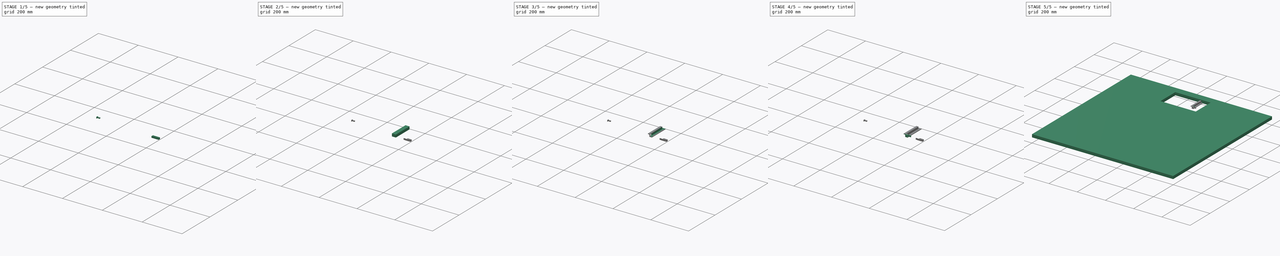
[diagram: build sequence overview — one tinted view per stage of 5, left to right]
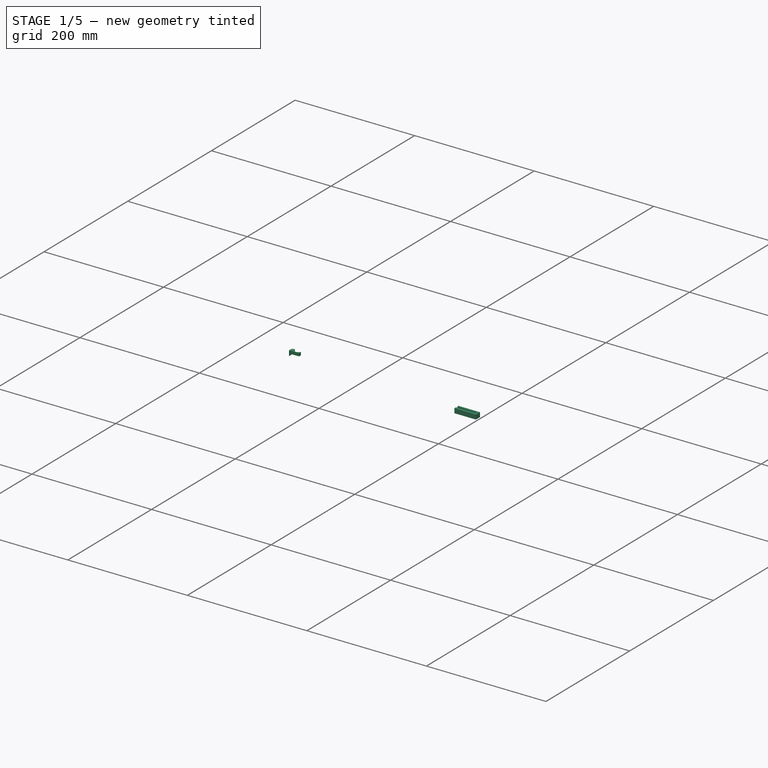
[diagram: stage 1 of 5 — iso view after this stage's code; geometry added in this stage tinted green]
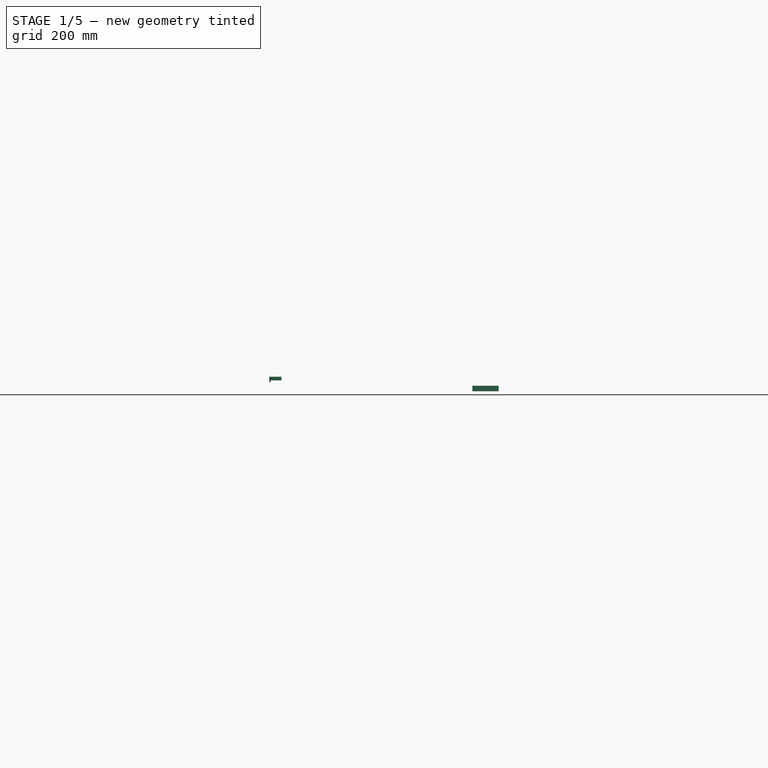
[diagram: stage 1 of 5 — front view after this stage's code; geometry added in this stage tinted green]
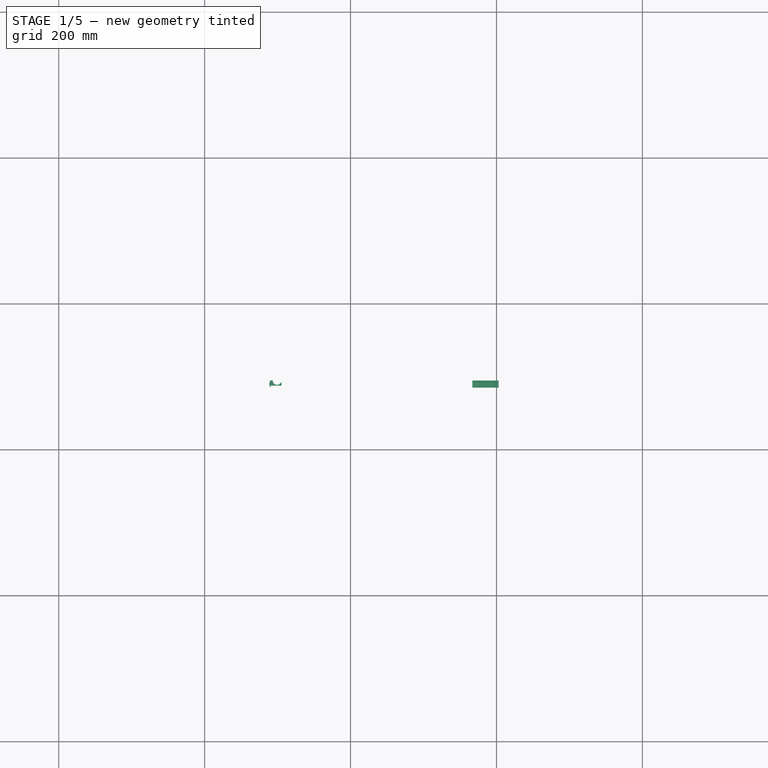
[diagram: stage 1 of 5 — top view after this stage's code; geometry added in this stage tinted green]
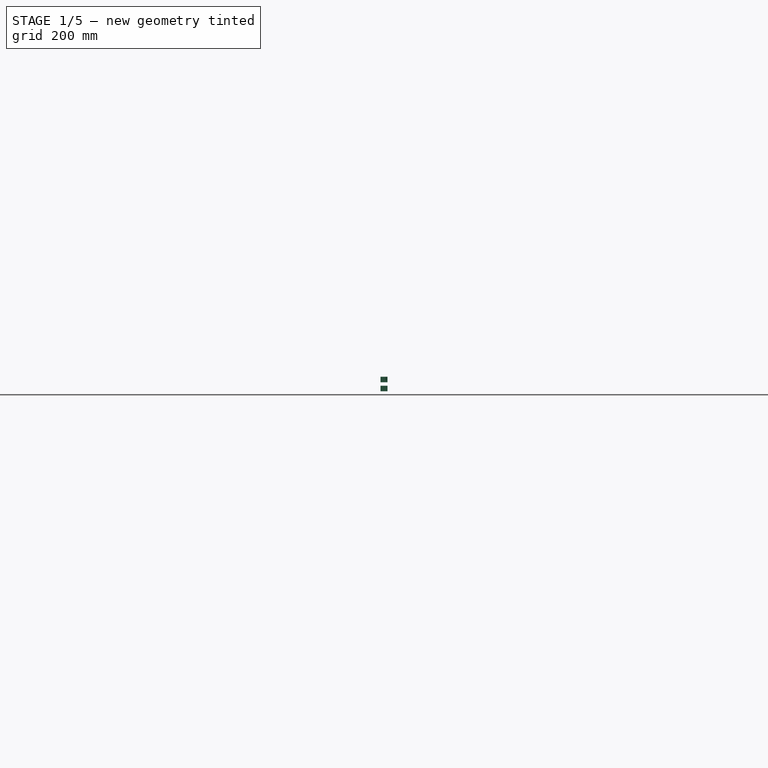
[diagram: stage 1 of 5 — right view after this stage's code; geometry added in this stage tinted green]
FCSTD DOCUMENT  (FreeCAD 0.20R29410 (Git))
Label: grinder_catchment_rails
License: All rights reserved
LicenseURL: http://en.wikipedia.org/wiki/All_rights_reserved
objects: Sketcher::SketchObject×17, PartDesign::Pad×11, PartDesign::Pocket×6, PartDesign::Body×4, Spreadsheet::Sheet×1, PartDesign::Fillet×1
note: 57 computed .brp shape members not serialized (recipe doc carries the construction recipe); baked Part::Feature solids carry a one-line shape summary decoded from their .brp

FEATURE [Sketcher::SketchObject] Sketch009
  FullyConstrained = false
  MapMode = 5
  Placement = pos=(0,0,0) rot=(0.57735,0.57735,0.57735;2.0944rad)
  Support = -> [YZ_Plane002]
  expr: Constraints[8] = Spreadsheet.lock_width - Spreadsheet.air_gap * 2
  expr: Constraints[9] = Spreadsheet.rail_lip_height - Spreadsheet.rail_thickness - Spreadsheet.air_gap * 2
  sketch-geometry (4):
    g0: LineSegment StartX=85.3205 StartY=-7.32279 StartZ=0 EndX=94.9205 EndY=-7.32279 EndZ=0
    g1: LineSegment StartX=94.9205 StartY=-7.32279 StartZ=0 EndX=94.9205 EndY=-14.9228 EndZ=0
    g2: LineSegment StartX=94.9205 StartY=-14.9228 StartZ=0 EndX=85.3205 EndY=-14.9228 EndZ=0
    g3: LineSegment StartX=85.3205 StartY=-14.9228 StartZ=0 EndX=85.3205 EndY=-7.32279 EndZ=0
  constraints (10):
    c: Coincident(g0,g1)
    c: Coincident(g1,g2)
    c: Coincident(g2,g3)
    c: Coincident(g3,g0)
    c: Horizontal(g0)
    c: Horizontal(g2)
    c: Vertical(g1)
    c: Vertical(g3)
    c: DistanceX(g0,g0) = 9.6
    c: DistanceY(g1,g1) = 7.6
FEATURE [PartDesign::Pad] Pad004  label="Main mass"
  Direction = (1,-2e-16,3e-16)
  Length = 3
  Length2 = 10
  Placement = pos=(0,0,0) rot=(0.57735,0.57735,0.57735;2.0944rad)
  Profile = -> Sketch009
  ReferenceAxis = -> Sketch009 [N_Axis]
  Type = 0
  expr: Length = Spreadsheet.rail_thickness
FEATURE [Sketcher::SketchObject] Sketch010
  ExternalGeometry = -> [Pad004]
  FullyConstrained = true
  MapMode = 5
  Placement = pos=(-1.75e-14,0,0) rot=(0.57735,0.57735,-0.57735;4.18879rad)
  Support = -> [Pad004]
  expr: Constraints[16] = Spreadsheet.rail_thickness - Spreadsheet.air_gap * 2
  expr: Constraints[17] = Spreadsheet.rail_thickness - Spreadsheet.air_gap * 2
  expr: Constraints[18] = Spreadsheet.rail_thickness - Spreadsheet.air_gap * 2
  expr: Constraints[19] = Spreadsheet.rail_thickness + Spreadsheet.air_gap * 2
  sketch-geometry (8):
    g0: LineSegment StartX=85.3205 StartY=7.32279 StartZ=0 EndX=85.3205 EndY=14.9228 EndZ=0
    g1: LineSegment StartX=85.3205 StartY=14.9228 StartZ=0 EndX=94.9205 EndY=14.9228 EndZ=0
    g2: LineSegment StartX=94.9205 StartY=14.9228 StartZ=0 EndX=94.9205 EndY=7.32279 EndZ=0
    g3: LineSegment StartX=94.9205 StartY=7.32279 StartZ=0 EndX=92.3205 EndY=7.32279 EndZ=0
    g4: LineSegment StartX=92.3205 StartY=7.32279 StartZ=0 EndX=92.3205 EndY=12.3228 EndZ=0
    g5: LineSegment StartX=92.3205 StartY=12.3228 StartZ=0 EndX=87.9205 EndY=12.3228 EndZ=0
    g6: LineSegment StartX=87.9205 StartY=12.3228 StartZ=0 EndX=88.9205 EndY=7.32279 EndZ=0
    g7: LineSegment StartX=88.9205 StartY=7.32279 StartZ=0 EndX=85.3205 EndY=7.32279 EndZ=0
  constraints (20):
    c: Coincident(g0,g-6)
    c: Coincident(g0,g-3)
    c: Coincident(g0,g1)
    c: Coincident(g1,g-4)
    c: Coincident(g1,g2)
    c: Coincident(g2,g-5)
    c: Coincident(g2,g3)
    c: Horizontal(g3)
    c: Coincident(g3,g4)
    c: Vertical(g4)
    c: Coincident(g4,g5)
    c: Horizontal(g5)
    c: Coincident(g5,g6)
    c: Coincident(g6,g7)
    c: Coincident(g7,g0)
    c: Horizontal(g7)
    c: DistanceX(g3,g3) = 2.6
    c: DistanceX(g0,g5) = 2.6
    c: DistanceY(g4,g1) = 2.6
    c: DistanceX(g6,g3) = 3.4
FEATURE [PartDesign::Pad] Pad005  label="Lock match"
  BaseFeature = -> Pad004
  Direction = (-1,7e-16,-3e-16)
  Length = 33
  Length2 = 10
  Placement = pos=(0,0,0) rot=(0.57735,0.57735,0.57735;2.0944rad)
  Profile = -> Sketch010
  ReferenceAxis = -> Sketch010 [N_Axis]
  Type = 0
  expr: Length = Spreadsheet.rail_screw_edge_distance * 2 + Spreadsheet.rail_lip_width + 15mm
FEATURE [Sketcher::SketchObject] Sketch014
  FullyConstrained = false
  MapMode = 5
  Support = -> [XY_Plane003]
  expr: Constraints[11] = Spreadsheet.rail_thickness
  expr: Constraints[13] = Spreadsheet.lock_width - 2 * (Spreadsheet.rail_thickness - Spreadsheet.air_gap * 2) - 2 * Spreadsheet.air_gap
  expr: Constraints[16] = Spreadsheet.rail_thickness - Spreadsheet.air_gap * 2
  expr: Constraints[6] = Spreadsheet.lock_width - (Spreadsheet.rail_thickness - Spreadsheet.air_gap * 2) - Spreadsheet.air_gap * 2
  sketch-geometry (7):
    g0: ArcOfCircle CenterX=-300.724 CenterY=94.8616 CenterZ=0 NormalX=0 NormalY=0 NormalZ=1 AngleXU=0 Radius=6 StartAngle=3.14159 EndAngle=5.835
    g1: LineSegment StartX=-306.724 StartY=94.8616 StartZ=0 EndX=-309.724 EndY=94.8616 EndZ=0
    g2: LineSegment StartX=-294.724 StartY=92.2616 StartZ=0 EndX=-294.724 EndY=87.8616 EndZ=0
    g3: LineSegment StartX=-294.724 StartY=87.8616 StartZ=0 EndX=-309.724 EndY=87.8616 EndZ=0
    g4: LineSegment StartX=-295.317 StartY=92.2616 StartZ=0 EndX=-294.724 EndY=92.2616 EndZ=0
    g5: LineSegment StartX=-309.724 StartY=87.8616 StartZ=0 EndX=-309.724 EndY=85.2616 EndZ=0
    g6: ArcOfCircle CenterX=-303.324 CenterY=90.0616 CenterZ=0 NormalX=0 NormalY=0 NormalZ=1 AngleXU=0 Radius=8 StartAngle=2.49809 EndAngle=3.78509
  constraints (21):
    c: Coincident(g0,g1)
    c: Horizontal(g1)
    c: Radius(g0) = 6
    c: Vertical(g2)
    c: Coincident(g3,g2)
    c: Horizontal(g3)
    c: DistanceY(g3,g1) = 7
    c: DistanceY(g0,g0) = 0
    c: Coincident(g4,g0)
    c: Coincident(g4,g2)
    c: Horizontal(g4)
    c: DistanceX(g1,g1) = 3
    c: DistanceX(g3,g2) = 15
    c: DistanceY(g2,g2) = 4.4
    c: Coincident(g5,g3)
    c: Vertical(g5)
    c: DistanceY(g5,g5) = 2.6
    c: Coincident(g6,g5)
    c: Coincident(g6,g1)
    c: DistanceX(g1,g3) = 0
    c: Radius(g6) = 8
FEATURE [PartDesign::Pad] Pad007
  Direction = (0,0,1)
  Length = 5
  Length2 = 10
  Profile = -> Sketch014
  ReferenceAxis = -> Sketch014 [N_Axis]
  Type = 0
  expr: Length = Spreadsheet.rail_lip_height - Spreadsheet.rail_thickness * 2
FEATURE [PartDesign::Body] Body002  label="Lock pin"
  Group = -> [Sketch009,Pad004,Sketch010,Pad005,Sketch011,Pocket004,Sketch018,Pocket007]
  Origin = -> Origin002
  Placement = pos=(-276.7,-2,0.1) rot=(0,0,1;0rad)
  Tip = -> Pocket007
  expr: .Placement.Base.x = Spreadsheet.lock_open + Spreadsheet.rail_lip_width
FEATURE [Sketcher::SketchObject] Sketch019
  ExternalGeometry = -> [Pad007]
  FullyConstrained = true
  MapMode = 5
  Placement = pos=(0,0,0) rot=(1,0,0;3.14159rad)
  Support = -> [Pad007]
  sketch-geometry (2):
    g0: LineSegment StartX=-309.724 StartY=-85.2616 StartZ=0 EndX=-309.724 EndY=-94.8616 EndZ=0
    g1: ArcOfCircle CenterX=-303.324 CenterY=-90.0616 CenterZ=0 NormalX=0 NormalY=0 NormalZ=1 AngleXU=0 Radius=8 StartAngle=2.49809 EndAngle=3.78509
  constraints (5):
    c: Coincident(g0,g-3)
    c: Coincident(g0,g-4)
    c: Coincident(g1,g0)
    c: Coincident(g1,g0)
    c: Radius(g1) = 8
FEATURE [PartDesign::Pad] Pad010
  BaseFeature = -> Pad007
  Direction = (0,0,-1)
  Length = 2.6
  Length2 = 10
  Profile = -> Sketch019
  ReferenceAxis = -> Sketch019 [N_Axis]
  Type = 0
  expr: Length = Spreadsheet.rail_thickness - Spreadsheet.air_gap * 2
FEATURE [PartDesign::Body] Body003  label="Lock pin reinforcement"
  Group = -> [Sketch014,Pad007,Sketch019,Pad010]
  Origin = -> Origin003
  Placement = pos=(0,-2,-12) rot=(0,0,1;0rad)
  Tip = -> Pad010
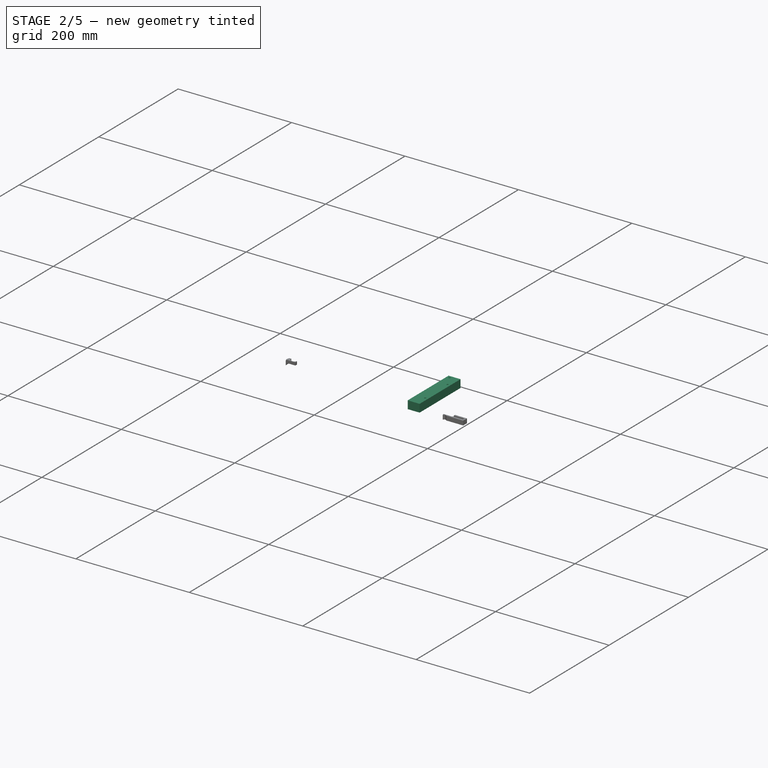
[diagram: stage 2 of 5 — iso view after this stage's code; geometry added in this stage tinted green]
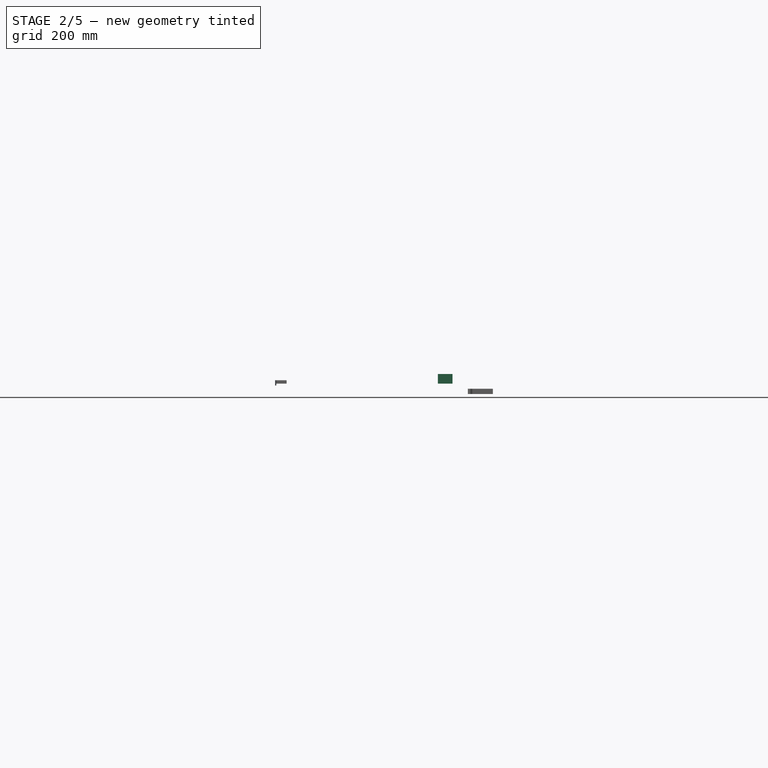
[diagram: stage 2 of 5 — front view after this stage's code; geometry added in this stage tinted green]
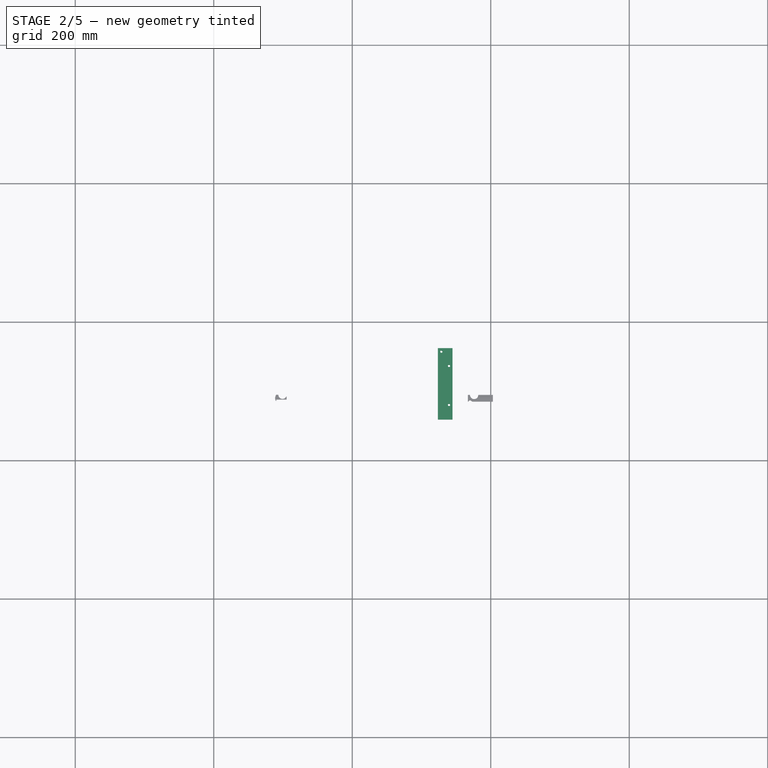
[diagram: stage 2 of 5 — top view after this stage's code; geometry added in this stage tinted green]
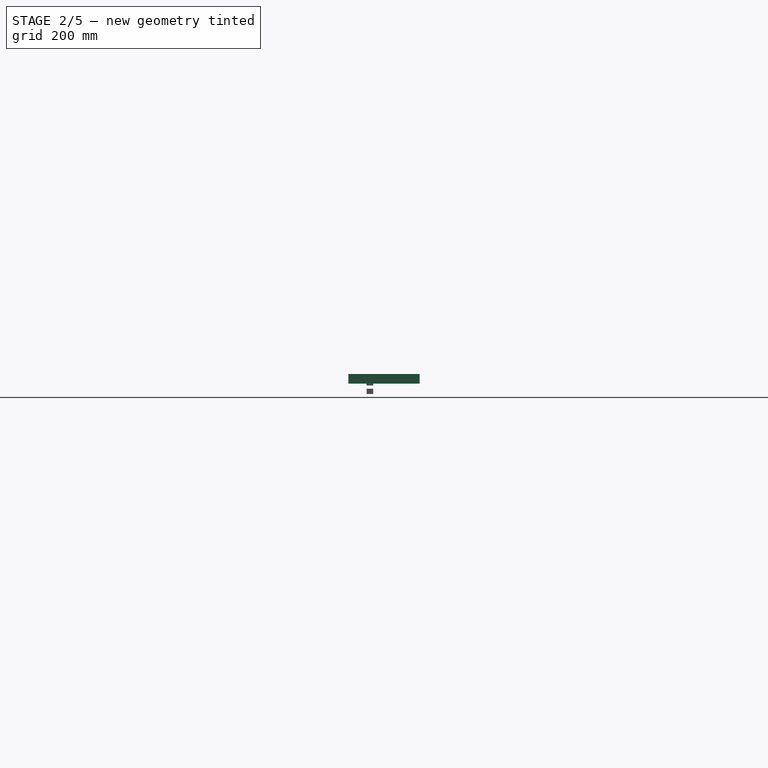
[diagram: stage 2 of 5 — right view after this stage's code; geometry added in this stage tinted green]
FEATURE [PartDesign::Body] Body001  label="Table"
  Group = -> [Sketch002,Pad,Sketch,Pad001]
  Origin = -> Origin001
  Tip = -> Pad001
FEATURE [Sketcher::SketchObject] Sketch003
  FullyConstrained = false
  MapMode = 5
  Support = -> [XY_Plane]
  expr: Constraints[11] = Spreadsheet.rail_screw_edge_distance
  expr: Constraints[12] = Spreadsheet.rail_screw_edge_distance
  expr: Constraints[13] = Spreadsheet.rail_screw_edge_distance
  expr: Constraints[14] = Spreadsheet.rail_screw_edge_distance
  expr: Constraints[15] = Spreadsheet.rail_thickness * 2 + Spreadsheet.lock_width + Spreadsheet.rail_screw_edge_distance
  expr: Constraints[16] = Spreadsheet.rail_depth + Spreadsheet.rail_screw_edge_distance * 2 + Spreadsheet.rail_thickness * 2 + Spreadsheet.lock_width
  expr: Constraints[17] = Spreadsheet.rail_depth / 3
  expr: Constraints[18] = Spreadsheet.rail_lip_width + Spreadsheet.rail_thickness + Spreadsheet.rail_screw_edge_distance * 2
  expr: Constraints[8] = Spreadsheet.rail_screw_hole_radius
  sketch-geometry (7):
    g0: LineSegment StartX=-76.3111 StartY=58.9588 StartZ=0 EndX=-55.3111 EndY=58.9588 EndZ=0
    g1: LineSegment StartX=-55.3111 StartY=58.9588 StartZ=0 EndX=-55.3111 EndY=161.959 EndZ=0
    g2: LineSegment StartX=-55.3111 StartY=161.959 StartZ=0 EndX=-76.3111 EndY=161.959 EndZ=0
    g3: LineSegment StartX=-76.3111 StartY=161.959 StartZ=0 EndX=-76.3111 EndY=58.9588 EndZ=0
    g4: Circle CenterX=-71.3111 CenterY=156.959 CenterZ=0 NormalX=0 NormalY=0 NormalZ=1 AngleXU=0 Radius=1.6
    g5: Circle CenterX=-60.3111 CenterY=136.292 CenterZ=0 NormalX=0 NormalY=0 NormalZ=1 AngleXU=0 Radius=1.6
    g6: Circle CenterX=-60.3111 CenterY=79.9588 CenterZ=0 NormalX=0 NormalY=0 NormalZ=1 AngleXU=0 Radius=1.6
  constraints (19):
    c: Coincident(g0,g1)
    c: Coincident(g1,g2)
    c: Coincident(g2,g3)
    c: Coincident(g3,g0)
    c: Horizontal(g0)
    c: Horizontal(g2)
    c: Vertical(g1)
    c: Vertical(g3)
    c: Radius(g4) = 1.6
    c: Equal(g4,g5) = 2
    c: Equal(g4,g6) = 2
    c: DistanceX(g2,g4) = 5
    c: DistanceY(g4,g2) = 5
    c: DistanceX(g5,g1) = 5
    c: DistanceX(g6,g0) = 5
    c: DistanceY(g0,g6) = 21
    c: DistanceY(g3,g3) = 103
    c: DistanceY(g5,g1) = 25.6667
    c: DistanceX(g0,g0) = 21
FEATURE [PartDesign::Pad] Pad002  label="Main mass with screw holes"
  Direction = (0,0,1)
  Length = 14
  Length2 = 10
  Profile = -> Sketch003
  ReferenceAxis = -> Sketch003 [N_Axis]
  Type = 0
  expr: Length = Spreadsheet.rail_lip_height + Spreadsheet.rail_thickness
FEATURE [Sketcher::SketchObject] Sketch011
  ExternalGeometry = -> [Pad005]
  FullyConstrained = true
  MapMode = 5
  Placement = pos=(6.6e-15,-1.21e-14,-14.9228) rot=(0.707107,0.707107,0;3.14159rad)
  Support = -> [Pad005]
  expr: Constraints[16] = Spreadsheet.rail_thickness + Spreadsheet.rail_lip_width + Spreadsheet.rail_screw_edge_distance * 2
  sketch-geometry (5):
    g0: LineSegment StartX=94.9205 StartY=-18 StartZ=0 EndX=94.9205 EndY=-30 EndZ=0
    g1: ArcOfCircle CenterX=94.9205 CenterY=-24 CenterZ=0 NormalX=0 NormalY=0 NormalZ=1 AngleXU=0 Radius=6 StartAngle=1.5708 EndAngle=4.71239
    g2: LineSegment StartX=85.3205 StartY=-26.5 StartZ=0 EndX=85.3205 EndY=-32 EndZ=0
    g3: ArcOfCircle CenterX=84.9277 CenterY=-29.8658 CenterZ=0 NormalX=0 NormalY=0 NormalZ=1 AngleXU=0 Radius=2.17 StartAngle=4.8944 EndAngle=7.05655
    g4: ArcOfCircle CenterX=90.171 CenterY=-24.7473 CenterZ=0 NormalX=0 NormalY=0 NormalZ=1 AngleXU=0 Radius=5.15747 StartAngle=3.48834 EndAngle=3.91496
  constraints (17):
    c: Coincident(g1,g0)
    c: Coincident(g1,g0)
    c: DistanceX(g-3,g0) = 0
    c: Vertical(g0)
    c: Angle(g1) = 3.14159
    c: Radius(g1) = 6
    c: PointOnObject(g2,g-5)
    c: PointOnObject(g2,g-5)
    c: DistanceY(g2,g2) = 5.5
    c: Coincident(g3,g2)
    c: DistanceY(g-5,g2) = 1
    c: Coincident(g4,g2)
    c: DistanceY(g3,g2) = 1.85
    c: Tangent(g3,g4) = 1.5708
    c: DistanceX(g2,g3) = 1.16
    c: Radius(g3) = 2.17
    c: DistanceY(g0,g-6) = 21
FEATURE [PartDesign::Pocket] Pocket004  label="Finger catch"
  BaseFeature = -> Pad005
  Direction = (-4e-16,8e-16,1)
  Length = 5
  Length2 = 5
  Placement = pos=(0,0,0) rot=(0.57735,0.57735,0.57735;2.0944rad)
  Profile = -> Sketch011
  ReferenceAxis = -> Sketch011 [N_Axis]
  Type = 1
FEATURE [PartDesign::Body] Body  label="Rail"
  Group = -> [Sketch003,Pad002,Sketch004,Pocket,Sketch005,Pocket001,Sketch006,Pocket002,Sketch007,Pocket003,Sketch008,Pad003,Sketch013,Pad006,Sketch016,Pad008,Sketch017,Pad009,Fillet]
  Origin = -> Origin
  Placement = pos=(-350,21,-4) rot=(0,1,0;3.14159rad)
  Tip = -> Fillet
FEATURE [Sketcher::SketchObject] Sketch018
  ExternalGeometry = -> [Pocket004]
  FullyConstrained = true
  MapMode = 5
  Placement = pos=(5.7e-15,-4.1e-15,-7.32279) rot=(0,0,-1;1.5708rad)
  Support = -> [Pocket004]
  expr: Constraints[21] = Spreadsheet.rail_thickness + Spreadsheet.rail_lip_width + Spreadsheet.rail_screw_edge_distance * 2
  expr: Constraints[9] = Spreadsheet.rail_thickness - Spreadsheet.air_gap * 2
  sketch-geometry (8):
    g0: LineSegment StartX=-94.9205 StartY=-33 StartZ=0 EndX=-92.3205 EndY=-33 EndZ=0
    g1: LineSegment StartX=-92.3205 StartY=-33 StartZ=0 EndX=-92.3205 EndY=-29 EndZ=0
    g2: LineSegment StartX=-92.3205 StartY=-29 StartZ=0 EndX=-94.9205 EndY=-29 EndZ=0
    g3: LineSegment StartX=-94.9205 StartY=-29 StartZ=0 EndX=-94.9205 EndY=-33 EndZ=0
    g4: LineSegment StartX=-87.9205 StartY=-33 StartZ=0 EndX=-88.9205 EndY=-33 EndZ=0
    g5: LineSegment StartX=-88.9205 StartY=-33 StartZ=0 EndX=-88.9205 EndY=-18 EndZ=0
    g6: LineSegment StartX=-88.9205 StartY=-18 StartZ=0 EndX=-87.9205 EndY=-18 EndZ=0
    g7: LineSegment StartX=-87.9205 StartY=-18 StartZ=0 EndX=-87.9205 EndY=-33 EndZ=0
  constraints (22):
    c: Coincident(g0,g1)
    c: Coincident(g1,g2)
    c: Coincident(g2,g3)
    c: Coincident(g3,g0)
    c: Horizontal(g0)
    c: Horizontal(g2)
    c: Vertical(g1)
    c: Vertical(g3)
    c: Coincident(g0,g-3)
    c: DistanceX(g0,g0) = 2.6
    c: DistanceY(g3,g3) = 4
    c: Coincident(g4,g5)
    c: Coincident(g5,g6)
    c: Coincident(g6,g7)
    c: Coincident(g7,g4)
    c: Horizontal(g4)
    c: Horizontal(g6)
    c: Vertical(g5)
    c: Vertical(g7)
    c: Coincident(g4,g-4)
    c: DistanceX(g4,g4) = 1
    c: DistanceY(g6,g-5) = 21
FEATURE [PartDesign::Pocket] Pocket007
  BaseFeature = -> Pocket004
  Direction = (8e-16,-6e-16,-1)
  Length = 5
  Length2 = 5
  Placement = pos=(0,0,0) rot=(0.57735,0.57735,0.57735;2.0944rad)
  Profile = -> Sketch018
  ReferenceAxis = -> Sketch018 [N_Axis]
  Type = 0
  expr: Length = Spreadsheet.rail_lip_height - Spreadsheet.rail_thickness * 2
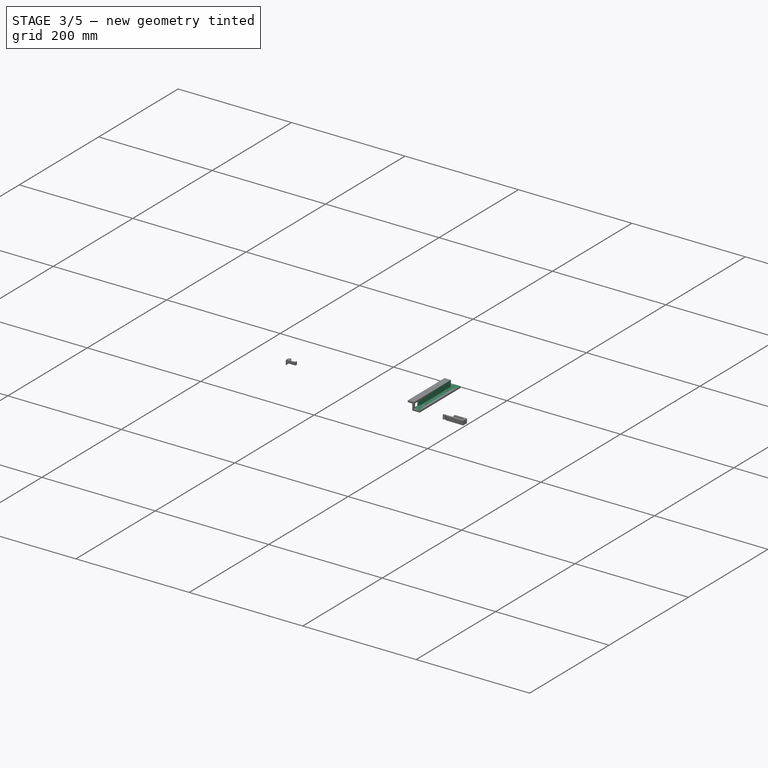
[diagram: stage 3 of 5 — iso view after this stage's code; geometry added in this stage tinted green]
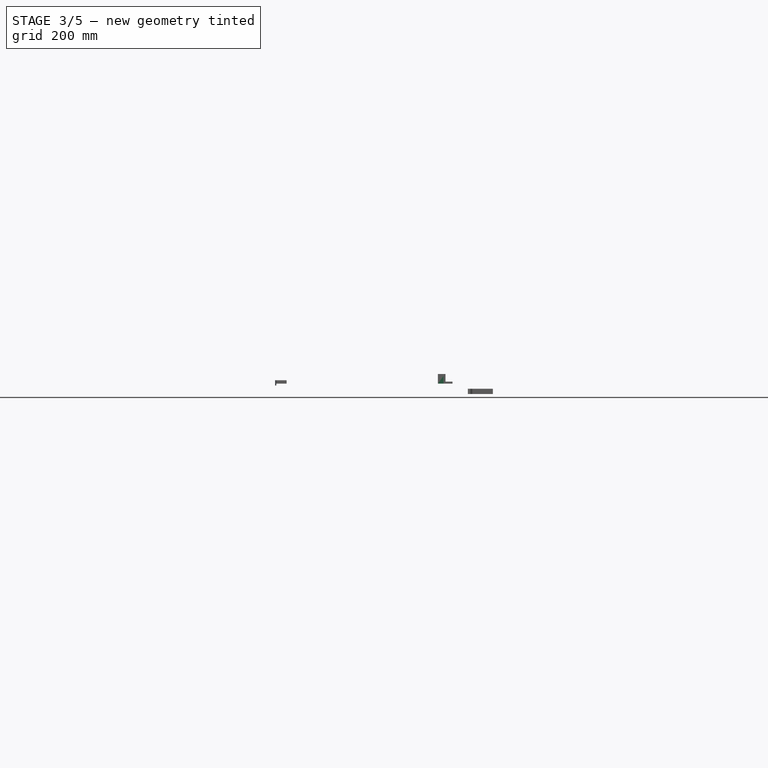
[diagram: stage 3 of 5 — front view after this stage's code; geometry added in this stage tinted green]
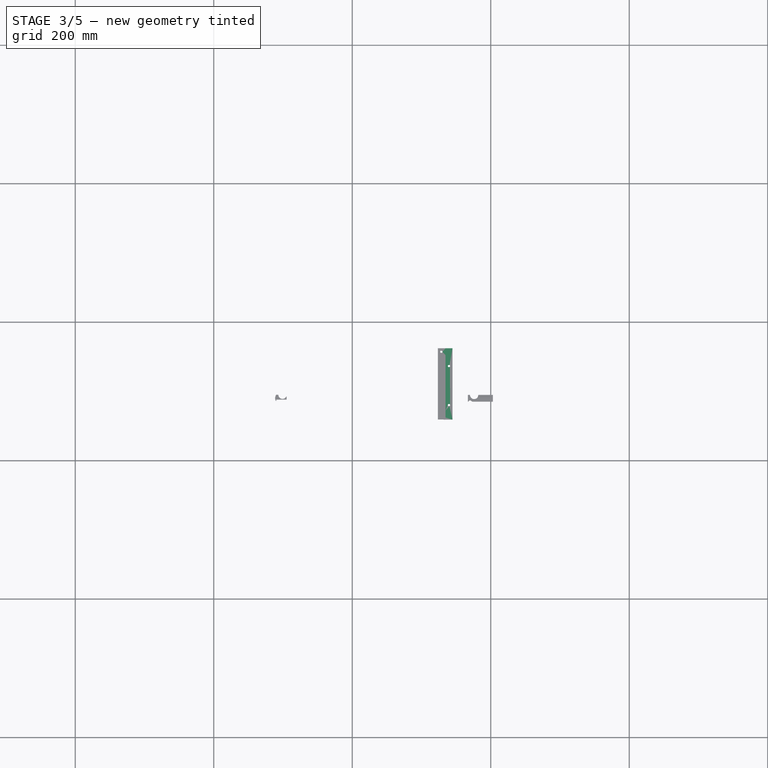
[diagram: stage 3 of 5 — top view after this stage's code; geometry added in this stage tinted green]
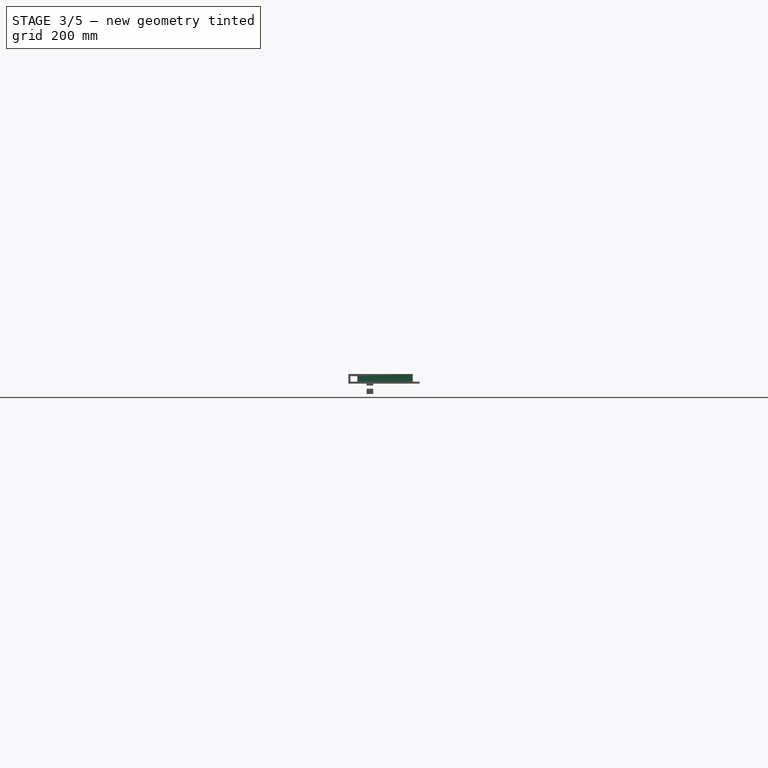
[diagram: stage 3 of 5 — right view after this stage's code; geometry added in this stage tinted green]
FEATURE [Sketcher::SketchObject] Sketch004
  ExternalGeometry = -> [Pad002]
  FullyConstrained = true
  MapMode = 5
  Placement = pos=(0,58.9588,0) rot=(1,0,0;1.5708rad)
  Support = -> [Pad002]
  expr: Constraints[8] = Spreadsheet.rail_lip_height
  expr: Constraints[9] = Spreadsheet.rail_lip_width
  sketch-geometry (4):
    g0: LineSegment StartX=-76.3111 StartY=0 StartZ=0 EndX=-76.3111 EndY=11 EndZ=0
    g1: LineSegment StartX=-76.3111 StartY=11 StartZ=0 EndX=-68.3111 EndY=11 EndZ=0
    g2: LineSegment StartX=-68.3111 StartY=11 StartZ=0 EndX=-68.3111 EndY=0 EndZ=0
    g3: LineSegment StartX=-68.3111 StartY=0 StartZ=0 EndX=-76.3111 EndY=0 EndZ=0
  constraints (11):
    c: Coincident(g0,g-3)
    c: Vertical(g0)
    c: Coincident(g0,g1)
    c: Horizontal(g1)
    c: Coincident(g1,g2)
    c: PointOnObject(g2,g-1)
    c: Coincident(g2,g3)
    c: Coincident(g3,g0)
    c: DistanceY(g0,g0) = 11
    c: DistanceX(g3,g3) = 8
    c: Vertical(g2)
FEATURE [PartDesign::Pocket] Pocket  label="lip pocket"
  BaseFeature = -> Pad002
  Direction = (0,1,-2e-16)
  Length = 90
  Length2 = 5
  Profile = -> Sketch004
  ReferenceAxis = -> Sketch004 [N_Axis]
  Type = 0
  expr: Length = Spreadsheet.rail_depth + Spreadsheet.rail_thickness + Spreadsheet.lock_width
FEATURE [Sketcher::SketchObject] Sketch005
  ExternalGeometry = -> [Pocket]
  FullyConstrained = true
  MapMode = 5
  Placement = pos=(0,58.9588,0) rot=(1,0,0;1.5708rad)
  Support = -> [Pocket]
  expr: Constraints[10] = Spreadsheet.rail_screw_edge_distance * 2
  expr: Constraints[9] = Spreadsheet.rail_lip_height
  sketch-geometry (4):
    g0: LineSegment StartX=-55.3111 StartY=14 StartZ=0 EndX=-65.3111 EndY=14 EndZ=0
    g1: LineSegment StartX=-65.3111 StartY=14 StartZ=0 EndX=-65.3111 EndY=3 EndZ=0
    g2: LineSegment StartX=-65.3111 StartY=3 StartZ=0 EndX=-55.3111 EndY=3 EndZ=0
    g3: LineSegment StartX=-55.3111 StartY=3 StartZ=0 EndX=-55.3111 EndY=14 EndZ=0
  constraints (11):
    c: Coincident(g0,g1)
    c: Coincident(g1,g2)
    c: Coincident(g2,g3)
    c: Coincident(g3,g0)
    c: Horizontal(g0)
    c: Horizontal(g2)
    c: Vertical(g1)
    c: Vertical(g3)
    c: Coincident(g0,g-3)
    c: DistanceY(g3,g3) = 11
    c: DistanceX(g0,g0) = 10
FEATURE [PartDesign::Pocket] Pocket001  label="screws_pocket"
  BaseFeature = -> Pocket
  Direction = (0,1,-2e-16)
  Length = 5
  Length2 = 5
  Profile = -> Sketch005
  ReferenceAxis = -> Sketch005 [N_Axis]
  Type = 1
FEATURE [Sketcher::SketchObject] Sketch006
  ExternalGeometry = -> [Pocket001]
  FullyConstrained = true
  MapMode = 5
  Placement = pos=(-65.3111,0,0) rot=(0.57735,0.57735,0.57735;2.0944rad)
  Support = -> [Pocket001]
  expr: Constraints[10] = Spreadsheet.rail_screw_edge_distance * 2
  expr: Constraints[9] = Spreadsheet.rail_lip_height
  sketch-geometry (4):
    g0: LineSegment StartX=161.959 StartY=14 StartZ=0 EndX=151.959 EndY=14 EndZ=0
    g1: LineSegment StartX=151.959 StartY=14 StartZ=0 EndX=151.959 EndY=3 EndZ=0
    g2: LineSegment StartX=151.959 StartY=3 StartZ=0 EndX=161.959 EndY=3 EndZ=0
    g3: LineSegment StartX=161.959 StartY=3 StartZ=0 EndX=161.959 EndY=14 EndZ=0
  constraints (11):
    c: Coincident(g0,g1)
    c: Coincident(g1,g2)
    c: Coincident(g2,g3)
    c: Coincident(g3,g0)
    c: Horizontal(g0)
    c: Horizontal(g2)
    c: Vertical(g1)
    c: Vertical(g3)
    c: Coincident(g0,g-3)
    c: DistanceY(g3,g3) = 11
    c: DistanceX(g0,g0) = 10
FEATURE [PartDesign::Pocket] Pocket002  label="back_screw_pocket"
  BaseFeature = -> Pocket001
  Direction = (-1,0,0)
  Length = 5
  Length2 = 5
  Profile = -> Sketch006
  ReferenceAxis = -> Sketch006 [N_Axis]
  Type = 1
FEATURE [Sketcher::SketchObject] Sketch007
  ExternalGeometry = -> [Pocket002]
  FullyConstrained = true
  MapMode = 5
  Placement = pos=(0,58.9588,0) rot=(1,0,0;1.5708rad)
  Support = -> [Pocket002]
  expr: Constraints[10] = Spreadsheet.rail_thickness
  expr: Constraints[9] = Spreadsheet.rail_lip_height - Spreadsheet.rail_thickness
  sketch-geometry (4):
    g0: LineSegment StartX=-68.3111 StartY=11 StartZ=0 EndX=-65.3111 EndY=11 EndZ=0
    g1: LineSegment StartX=-65.3111 StartY=11 StartZ=0 EndX=-65.3111 EndY=3 EndZ=0
    g2: LineSegment StartX=-65.3111 StartY=3 StartZ=0 EndX=-68.3111 EndY=3 EndZ=0
    g3: LineSegment StartX=-68.3111 StartY=3 StartZ=0 EndX=-68.3111 EndY=11 EndZ=0
  constraints (11):
    c: Coincident(g0,g1)
    c: Coincident(g1,g2)
    c: Coincident(g2,g3)
    c: Coincident(g3,g0)
    c: Horizontal(g0)
    c: Horizontal(g2)
    c: Vertical(g1)
    c: Vertical(g3)
    c: Coincident(g0,g-3)
    c: DistanceY(g1,g1) = 8
    c: DistanceX(g0,g0) = 3
FEATURE [PartDesign::Pocket] Pocket003  label="lock_hole"
  BaseFeature = -> Pocket002
  Direction = (0,1,-2e-16)
  Length = 13
  Length2 = -3
  Profile = -> Sketch007
  ReferenceAxis = -> Sketch007 [N_Axis]
  Type = 4
  expr: Length = Spreadsheet.lock_width + Spreadsheet.rail_thickness
  expr: Length2 = -Spreadsheet.rail_thickness * 1
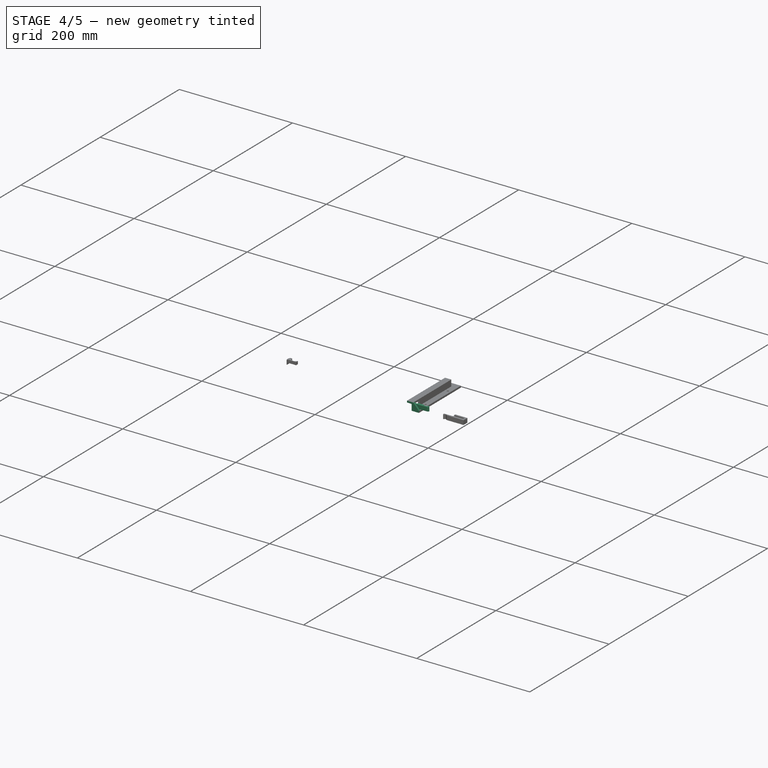
[diagram: stage 4 of 5 — iso view after this stage's code; geometry added in this stage tinted green]
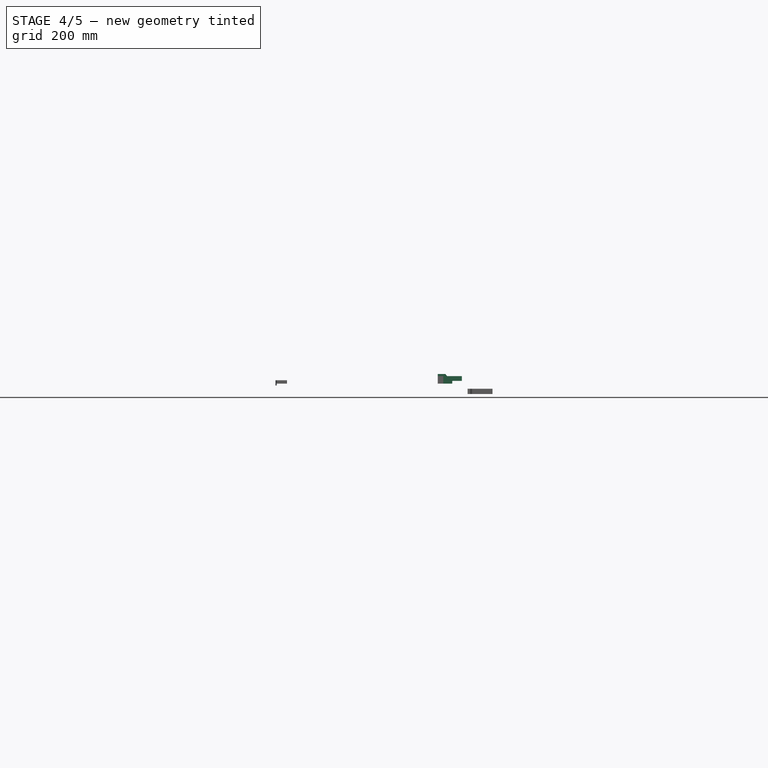
[diagram: stage 4 of 5 — front view after this stage's code; geometry added in this stage tinted green]
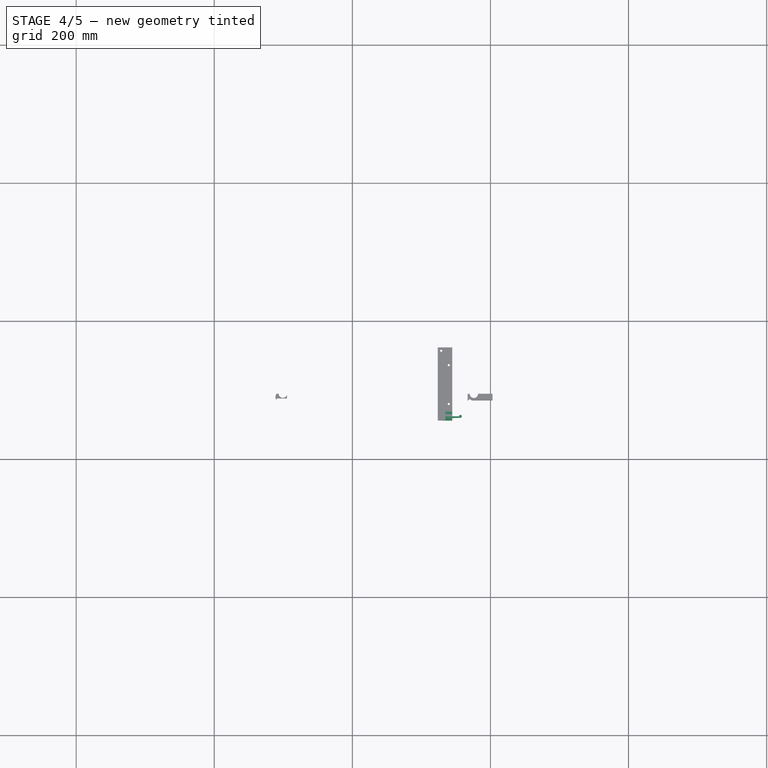
[diagram: stage 4 of 5 — top view after this stage's code; geometry added in this stage tinted green]
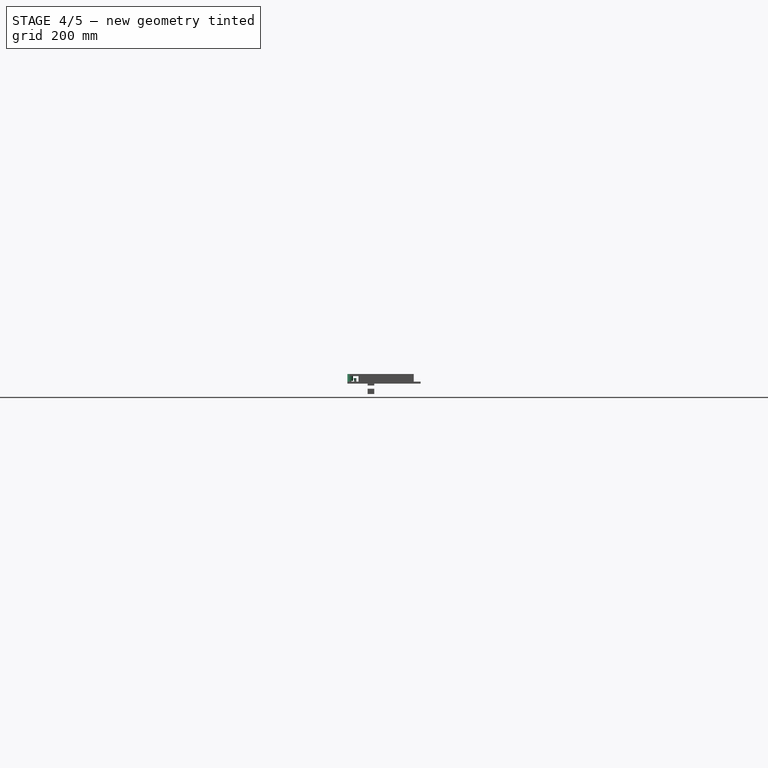
[diagram: stage 4 of 5 — right view after this stage's code; geometry added in this stage tinted green]
FEATURE [Sketcher::SketchObject] Sketch008
  ExternalGeometry = -> [Pocket003]
  FullyConstrained = true
  MapMode = 5
  Placement = pos=(-55.3111,0,0) rot=(0.57735,0.57735,0.57735;2.0944rad)
  Support = -> [Pocket003]
  expr: Constraints[10] = Spreadsheet.rail_thickness * 2
  expr: Constraints[11] = Spreadsheet.rail_thickness
  expr: Constraints[2] = Spreadsheet.rail_lip_height - Spreadsheet.rail_thickness * 2
  expr: Constraints[7] = Spreadsheet.lock_width
  sketch-geometry (4):
    g0: LineSegment StartX=64.9588 StartY=8 StartZ=0 EndX=68.9588 EndY=8 EndZ=0
    g1: LineSegment StartX=68.9588 StartY=8 StartZ=0 EndX=68.9588 EndY=3 EndZ=0
    g2: LineSegment StartX=68.9588 StartY=3 StartZ=0 EndX=65.9588 EndY=3 EndZ=0
    g3: LineSegment StartX=64.9588 StartY=8 StartZ=0 EndX=65.9588 EndY=3 EndZ=0
  constraints (12):
    c: Horizontal(g0)
    c: Coincident(g0,g1)
    c: DistanceY(g1,g0) = 5
    c: Vertical(g1)
    c: Coincident(g2,g1)
    c: Horizontal(g2)
    c: DistanceY(g-3,g2) = 0
    c: DistanceX(g-3,g1) = 10
    c: Coincident(g0,g3)
    c: Coincident(g3,g2)
    c: DistanceX(g-3,g0) = 6
    c: DistanceX(g2,g2) = 3
FEATURE [PartDesign::Pad] Pad003
  BaseFeature = -> Pocket003
  Direction = (1,0,0)
  Length = 0.01
  Length2 = 10
  Profile = -> Sketch008
  ReferenceAxis = -> Sketch008 [N_Axis]
  Type = 4
  expr: Length2 = Spreadsheet.rail_screw_edge_distance * 2
FEATURE [Sketcher::SketchObject] Sketch013
  ExternalGeometry = -> [Pad003]
  FullyConstrained = true
  MapMode = 5
  Placement = pos=(0,7e-16,3) rot=(0,0,1;0rad)
  Support = -> [Pad003]
  sketch-geometry (4):
    g0: LineSegment StartX=-65.3111 StartY=61.9588 StartZ=0 EndX=-45.5711 EndY=61.9588 EndZ=0
    g1: LineSegment StartX=-43.4225 StartY=59.9007 StartZ=0 EndX=-65.3111 EndY=58.9588 EndZ=0
    g2: LineSegment StartX=-65.3111 StartY=58.9588 StartZ=0 EndX=-65.3111 EndY=61.9588 EndZ=0
    g3: ArcOfCircle CenterX=-43.5111 CenterY=61.9588 CenterZ=0 NormalX=0 NormalY=0 NormalZ=1 AngleXU=0 Radius=2.06 StartAngle=4.75539 EndAngle=9.42478
  constraints (10):
    c: Coincident(g1,g2)
    c: Coincident(g2,g0)
    c: Coincident(g0,g-4)
    c: Coincident(g1,g-3)
    c: Horizontal(g0)
    c: Coincident(g0,g3)
    c: DistanceX(g1,g3) = 21.8
    c: Tangent(g1,g3) = 1.5708
    c: DistanceY(g0,g3) = 0
    c: Radius(g3) = 2.06
FEATURE [PartDesign::Pad] Pad006  label="Spring pin holder"
  BaseFeature = -> Pad003
  Direction = (0,2e-16,1)
  Length = 8
  Length2 = -1
  Profile = -> Sketch013
  ReferenceAxis = -> Sketch013 [N_Axis]
  Type = 4
  expr: Length = Spreadsheet.rail_lip_height - Spreadsheet.rail_thickness
FEATURE [Sketcher::SketchObject] Sketch016
  ExternalGeometry = -> [Pad006]
  FullyConstrained = true
  MapMode = 5
  Placement = pos=(0,58.9588,0) rot=(1,0,0;1.5708rad)
  Support = -> [Pad006]
  sketch-geometry (7):
    g0: LineSegment StartX=-65.3111 StartY=14 StartZ=0 EndX=-76.3111 EndY=14 EndZ=0
    g1: LineSegment StartX=-76.3111 StartY=14 StartZ=0 EndX=-76.3111 EndY=11 EndZ=0
    g2: LineSegment StartX=-76.3111 StartY=11 StartZ=0 EndX=-68.3111 EndY=11 EndZ=0
    g3: LineSegment StartX=-68.3111 StartY=11 StartZ=0 EndX=-68.3111 EndY=0 EndZ=0
    g4: LineSegment StartX=-68.3111 StartY=0 StartZ=0 EndX=-55.3111 EndY=0 EndZ=0
    g5: LineSegment StartX=-55.3111 StartY=0 StartZ=0 EndX=-55.3111 EndY=3 EndZ=0
    g6: LineSegment StartX=-55.3111 StartY=3 StartZ=0 EndX=-65.3111 EndY=14 EndZ=0
  constraints (14):
    c: Coincident(g0,g-5)
    c: Coincident(g0,g-3)
    c: Coincident(g0,g1)
    c: Coincident(g1,g-9)
    c: Coincident(g1,g2)
    c: Coincident(g2,g-4)
    c: Coincident(g2,g3)
    c: Coincident(g3,g-8)
    c: Coincident(g3,g4)
    c: Coincident(g4,g-7)
    c: Coincident(g4,g5)
    c: Coincident(g5,g-6)
    c: Coincident(g5,g6)
    c: Coincident(g6,g0)
FEATURE [PartDesign::Pad] Pad008  label="trianglular_guide_path_end"
  BaseFeature = -> Pad006
  Direction = (0,-1,2e-16)
  Length = 3
  Length2 = 16
  Profile = -> Sketch016
  ReferenceAxis = -> Sketch016 [N_Axis]
  Type = 0
  expr: Length = Spreadsheet.rail_thickness
  expr: Length2 = Spreadsheet.rail_thickness * 2 + Spreadsheet.lock_width
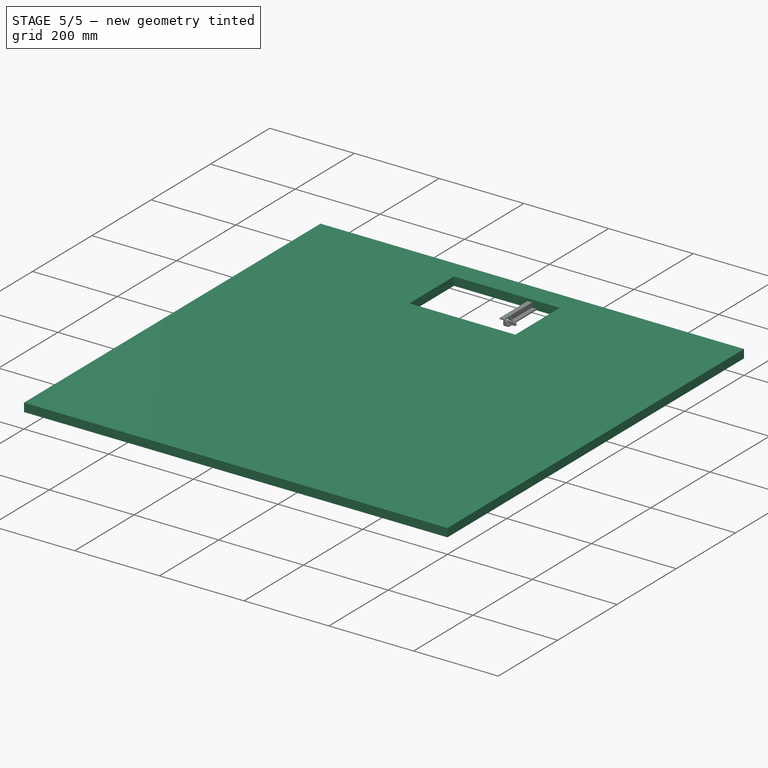
[diagram: stage 5 of 5 — iso view after this stage's code; geometry added in this stage tinted green]
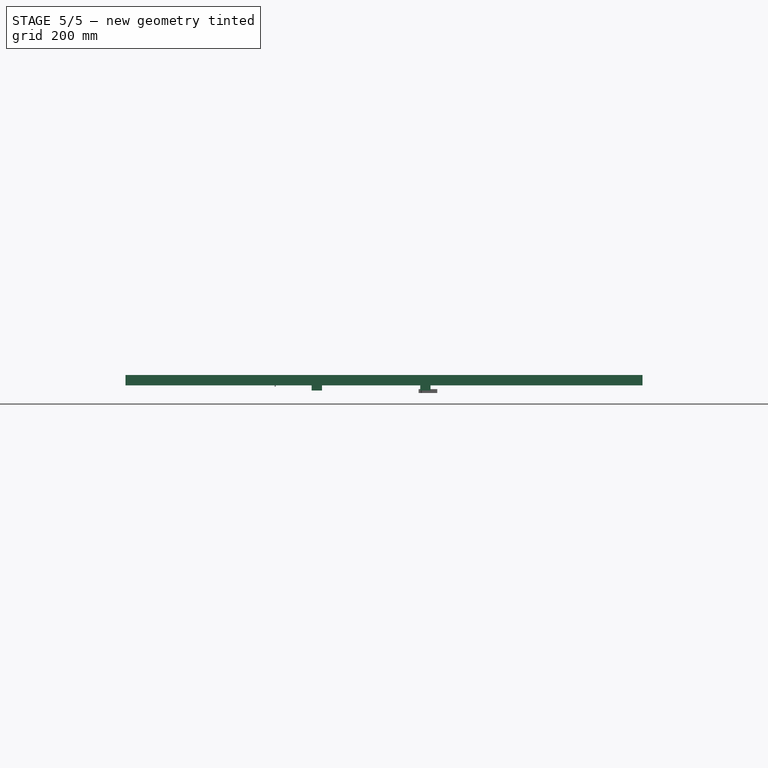
[diagram: stage 5 of 5 — front view after this stage's code; geometry added in this stage tinted green]
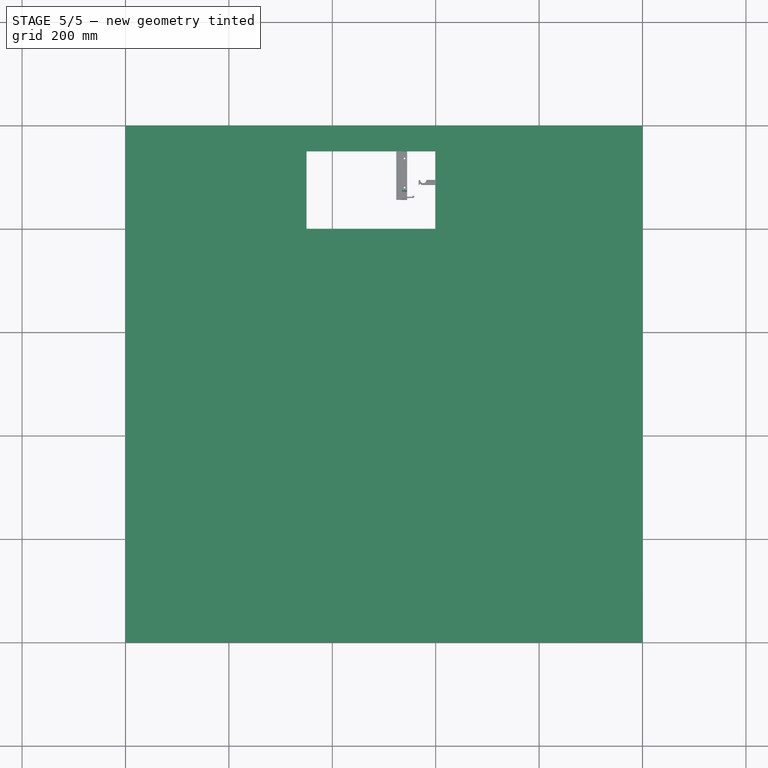
[diagram: stage 5 of 5 — top view after this stage's code; geometry added in this stage tinted green]
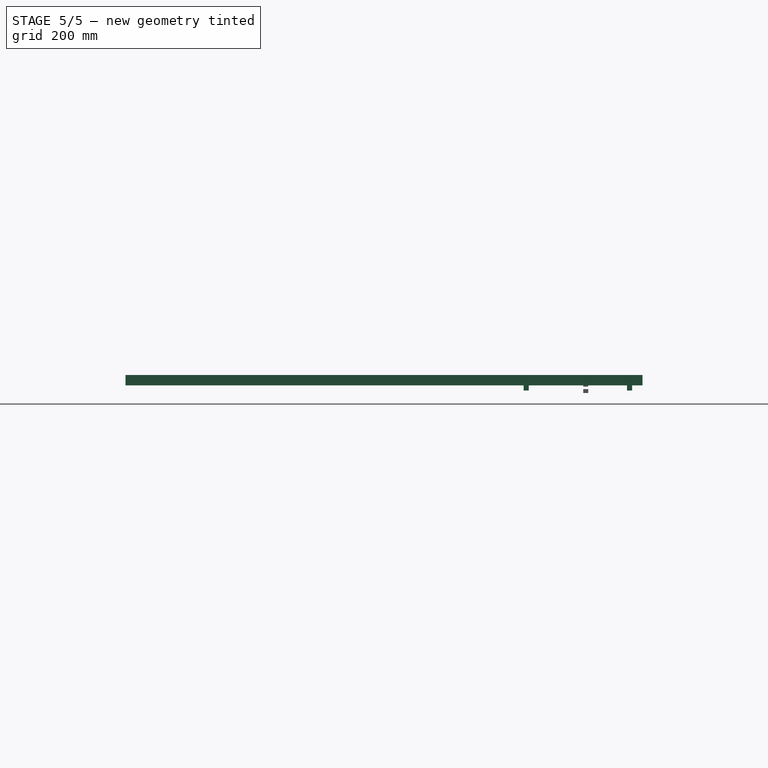
[diagram: stage 5 of 5 — right view after this stage's code; geometry added in this stage tinted green]
FEATURE [Sketcher::SketchObject] Sketch002
  FullyConstrained = true
  MapMode = 5
  Support = -> [XY_Plane001]
  expr: Constraints[19] = Spreadsheet.table_hole_width
  expr: Constraints[20] = Spreadsheet.table_hole_depth
  expr: Constraints[21] = Spreadsheet.table_hole_depth_offset
  expr: Constraints[22] = Spreadsheet.table_hole_width_offset
  expr: Constraints[8] = Spreadsheet.table_width
  expr: Constraints[9] = Spreadsheet.table_depth
  sketch-geometry (8):
    g0: LineSegment StartX=-600 StartY=200 StartZ=0 EndX=400 EndY=200 EndZ=0
    g1: LineSegment StartX=400 StartY=200 StartZ=0 EndX=400 EndY=-800 EndZ=0
    g2: LineSegment StartX=400 StartY=-800 StartZ=0 EndX=-600 EndY=-800 EndZ=0
    g3: LineSegment StartX=-600 StartY=-800 StartZ=0 EndX=-600 EndY=200 EndZ=0
    g4: LineSegment StartX=0 StartY=0 StartZ=0 EndX=-250 EndY=0 EndZ=0
    g5: LineSegment StartX=-250 StartY=0 StartZ=0 EndX=-250 EndY=150 EndZ=0
    g6: LineSegment StartX=-250 StartY=150 StartZ=0 EndX=0 EndY=150 EndZ=0
    g7: LineSegment StartX=0 StartY=150 StartZ=0 EndX=0 EndY=0 EndZ=0
  constraints (23):
    c: Coincident(g0,g1)
    c: Coincident(g1,g2)
    c: Coincident(g2,g3)
    c: Coincident(g3,g0)
    c: Horizontal(g0)
    c: Horizontal(g2)
    c: Vertical(g1)
    c: Vertical(g3)
    c: DistanceX(g0,g0) = 1000
    c: DistanceY(g1,g1) = 1000
    c: Coincident(g4,g5)
    c: Coincident(g5,g6)
    c: Coincident(g6,g7)
    c: Coincident(g7,g4)
    c: Horizontal(g4)
    c: Horizontal(g6)
    c: Vertical(g5)
    c: Vertical(g7)
    c: Coincident(g4,g-1)
    c: DistanceX(g4,g4) = 250
    c: DistanceY(g5,g5) = 150
    c: DistanceY(g6,g0) = 50
    c: DistanceX(g6,g0) = 400
FEATURE [PartDesign::Pad] Pad
  Direction = (0,0,1)
  Length = 20
  Length2 = 10
  Profile = -> Sketch002
  ReferenceAxis = -> Sketch002 [N_Axis]
  Type = 0
FEATURE [Spreadsheet::Sheet] Spreadsheet
  cells = A1=Table; D1=Rail; A2=table_width; B2(table_width)==1000mm; D2=rail_screw_hole_radius; E2(rail_screw_hole_radius)==1.6mm; A3=table_depth; B3(table_depth)==1000mm; D3=rail_depth; E3(rail_depth)==77mm; A4=table_thickness; B4(table_thickness)==20mm; D4=rail_lip_width; E4(rail_lip_width)==8mm; A5=Table_hole; D5=rail_lip_height; E5(rail_lip_height)==11mm; A6=table_hole_width; B6(table_hole_width)==250mm; D6=rail_screw_edge_distance; E6(rail_screw_edge_distance)==5mm; A7=table_hole_depth; B7(table_hole_depth)==150mm; D7=rail_thickness; E7(rail_thickness)==3mm; A8=table_hole_width_offset; B8(table_hole_width_offset)==400mm; A9=table_hole_depth_offset; B9(table_hole_depth_offset)==50mm; A10=Butterfly; D10=Lock; A11=butterfly_width; B11(butterfly_width)==20mm; D11=lock_width; E11(lock_width)==10mm; A12=butterfly_depth; B12(butterfly_depth)==10mm; D12=lock_open; E12(lock_open)==-284.7mm; A13=butterfly_height; B13(butterfly_height)==10mm; A17=air_gap; B17(air_gap)==0.2mm
FEATURE [Sketcher::SketchObject] Sketch
  ExternalGeometry = -> [Pad]
  FullyConstrained = true
  MapMode = 5
  Placement = pos=(0,0,0) rot=(1,0,0;3.14159rad)
  Support = -> [Pad]
  expr: Constraints[8] = Spreadsheet.butterfly_width
  expr: Constraints[9] = Spreadsheet.butterfly_depth
  sketch-geometry (16):
    g0: LineSegment StartX=-240 StartY=30 StartZ=0 EndX=-220 EndY=30 EndZ=0
    g1: LineSegment StartX=-220 StartY=30 StartZ=0 EndX=-220 EndY=20 EndZ=0
    g2: LineSegment StartX=-220 StartY=20 StartZ=0 EndX=-240 EndY=20 EndZ=0
    g3: LineSegment StartX=-240 StartY=20 StartZ=0 EndX=-240 EndY=30 EndZ=0
    g4: LineSegment StartX=-30 StartY=30 StartZ=0 EndX=-10 EndY=30 EndZ=0
    g5: LineSegment StartX=-10 StartY=30 StartZ=0 EndX=-10 EndY=20 EndZ=0
    g6: LineSegment StartX=-10 StartY=20 StartZ=0 EndX=-30 EndY=20 EndZ=0
    g7: LineSegment StartX=-30 StartY=20 StartZ=0 EndX=-30 EndY=30 EndZ=0
    g8: LineSegment StartX=-240 StartY=-170 StartZ=0 EndX=-220 EndY=-170 EndZ=0
    g9: LineSegment StartX=-220 StartY=-170 StartZ=0 EndX=-220 EndY=-180 EndZ=0
    g10: LineSegment StartX=-220 StartY=-180 StartZ=0 EndX=-240 EndY=-180 EndZ=0
    g11: LineSegment StartX=-240 StartY=-180 StartZ=0 EndX=-240 EndY=-170 EndZ=0
    g12: LineSegment StartX=-30 StartY=-170 StartZ=0 EndX=-10 EndY=-170 EndZ=0
    g13: LineSegment StartX=-10 StartY=-170 StartZ=0 EndX=-10 EndY=-180 EndZ=0
    g14: LineSegment StartX=-10 StartY=-180 StartZ=0 EndX=-30 EndY=-180 EndZ=0
    g15: LineSegment StartX=-30 StartY=-180 StartZ=0 EndX=-30 EndY=-170 EndZ=0
  constraints (48):
    c: Coincident(g0,g1)
    c: Coincident(g1,g2)
    c: Coincident(g2,g3)
    c: Coincident(g3,g0)
    c: Horizontal(g0)
    c: Horizontal(g2)
    c: Vertical(g1)
    c: Vertical(g3)
    c: DistanceX(g0,g0) = 20
    c: DistanceY(g1,g1) = 10
    c: Coincident(g4,g5)
    c: Coincident(g5,g6)
    c: Coincident(g6,g7)
    c: Coincident(g7,g4)
    c: Horizontal(g4)
    c: Horizontal(g6)
    c: Vertical(g5)
    c: Vertical(g7)
    c: Equal(g0,g4) = 20
    c: Equal(g1,g5) = 10
    c: Coincident(g8,g9)
    c: Coincident(g9,g10)
    c: Coincident(g10,g11)
    c: Coincident(g11,g8)
    c: Horizontal(g8)
    c: Horizontal(g10)
    c: Vertical(g9)
    c: Vertical(g11)
    c: Equal(g0,g8) = 20
    c: Equal(g1,g9) = 10
    c: Coincident(g12,g13)
    c: Coincident(g13,g14)
    c: Coincident(g14,g15)
    c: Coincident(g15,g12)
    c: Horizontal(g12)
    c: Horizontal(g14)
    c: Vertical(g13)
    c: Vertical(g15)
    c: Equal(g0,g12) = 20
    c: Equal(g1,g13) = 10
    c: DistanceX(g-3,g2) = 10
    c: DistanceY(g-3,g2) = 20
    c: DistanceX(g5,g-1) = 10
    c: DistanceY(g-1,g5) = 20
    c: DistanceY(g8,g-4) = 20
    c: DistanceY(g12,g-5) = 20
    c: DistanceX(g-4,g8) = 10
    c: DistanceX(g12,g-5) = 10
FEATURE [PartDesign::Pad] Pad001
  BaseFeature = -> Pad
  Direction = (0,0,-1)
  Length = 10
  Length2 = 10
  Profile = -> Sketch
  ReferenceAxis = -> Sketch [N_Axis]
  Type = 0
  expr: Length = Spreadsheet.butterfly_height
FEATURE [Sketcher::SketchObject] Sketch017
  ExternalGeometry = -> [Pad008]
  FullyConstrained = true
  MapMode = 5
  Placement = pos=(0,58.9588,0) rot=(0,0.707107,0.707107;3.14159rad)
  Support = -> [Pad008]
  sketch-geometry (3):
    g0: LineSegment StartX=65.3111 StartY=14 StartZ=0 EndX=55.3011 EndY=3 EndZ=0
    g1: LineSegment StartX=55.3011 StartY=3 StartZ=0 EndX=65.3111 EndY=3 EndZ=0
    g2: LineSegment StartX=65.3111 StartY=3 StartZ=0 EndX=65.3111 EndY=14 EndZ=0
  constraints (7):
    c: Coincident(g0,g-3)
    c: Coincident(g0,g-4)
    c: Coincident(g0,g1)
    c: Horizontal(g1)
    c: Coincident(g1,g2)
    c: Coincident(g2,g0)
    c: Vertical(g2)
FEATURE [PartDesign::Pad] Pad009  label="triangular_guide_path_screw"
  BaseFeature = -> Pad008
  Direction = (0,1,-2e-16)
  Length = 16
  Length2 = -13
  Profile = -> Sketch017
  ReferenceAxis = -> Sketch017 [N_Axis]
  Type = 4
  expr: Length = Spreadsheet.rail_thickness * 2 + Spreadsheet.lock_width
  expr: Length2 = -(Spreadsheet.rail_thickness + Spreadsheet.lock_width)
FEATURE [PartDesign::Fillet] Fillet
  Base = -> Pad009 [Edge48,Edge25]
  BaseFeature = -> Pad009
  Radius = 1
  SupportTransform = false
  UseAllEdges = false
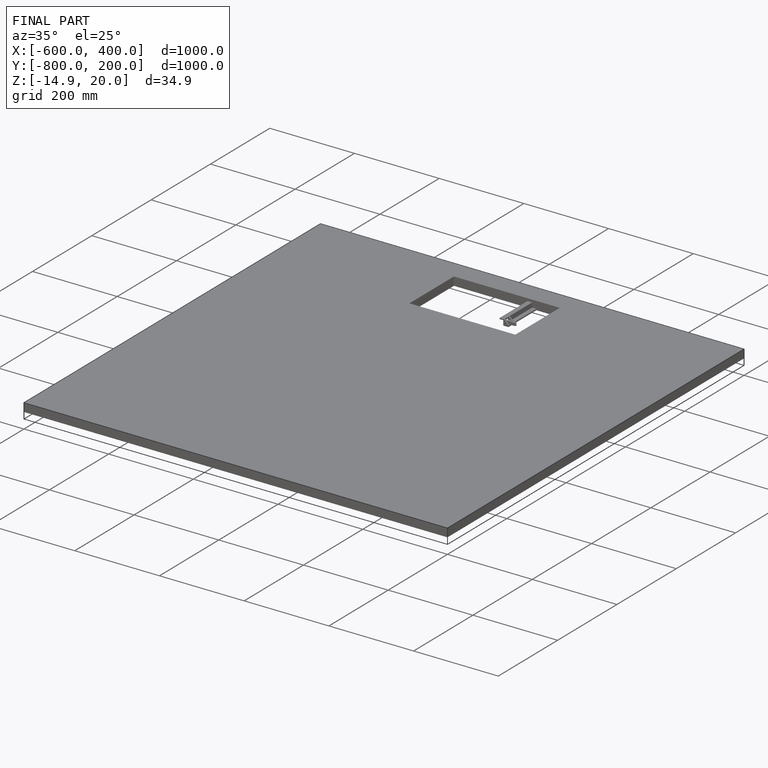
[diagram: finished part — iso view with bounding-box wireframe]
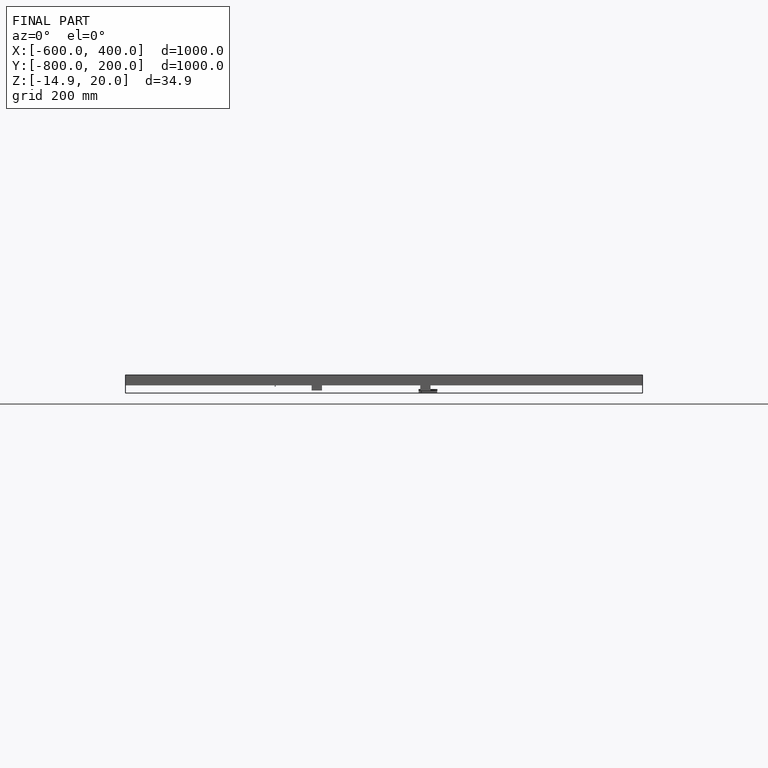
[diagram: finished part — front view with bounding-box wireframe]
